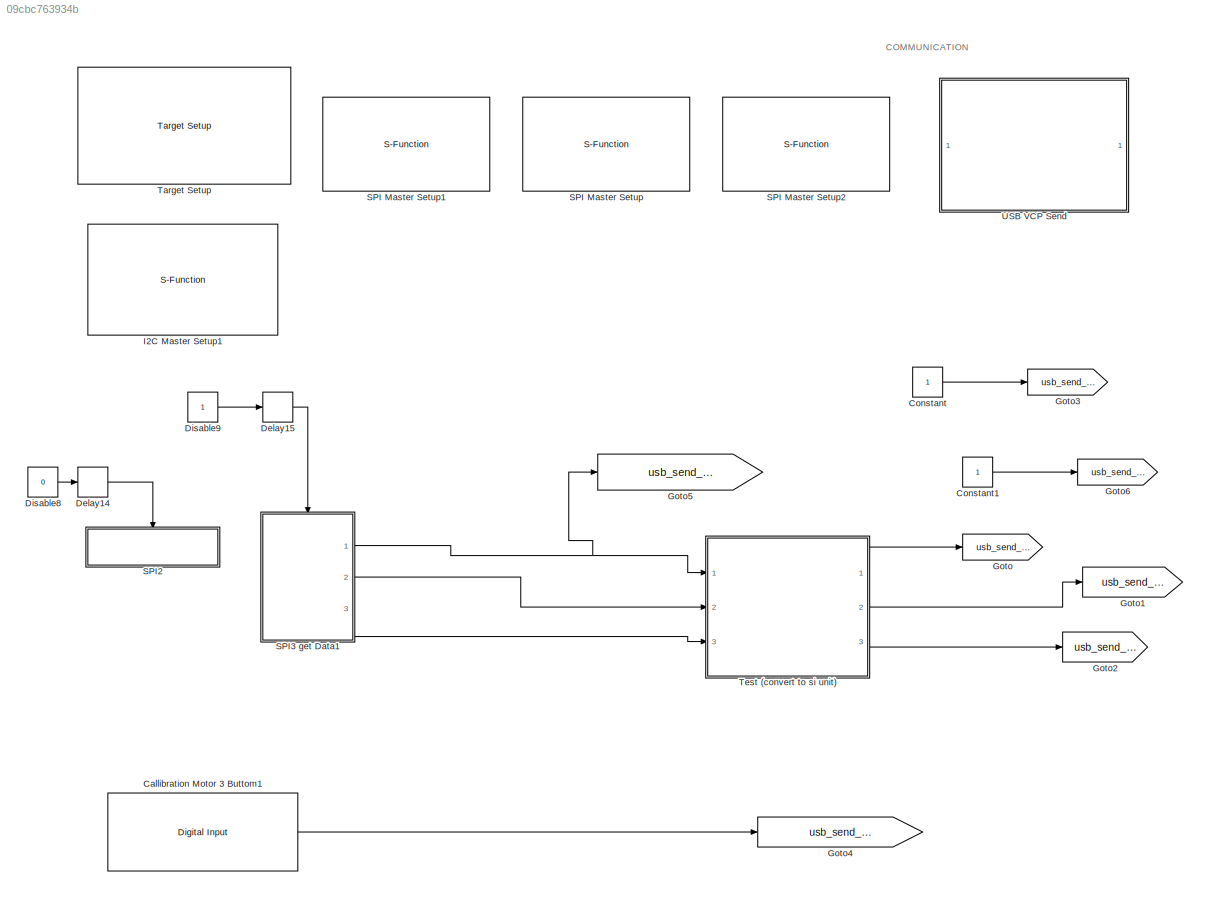
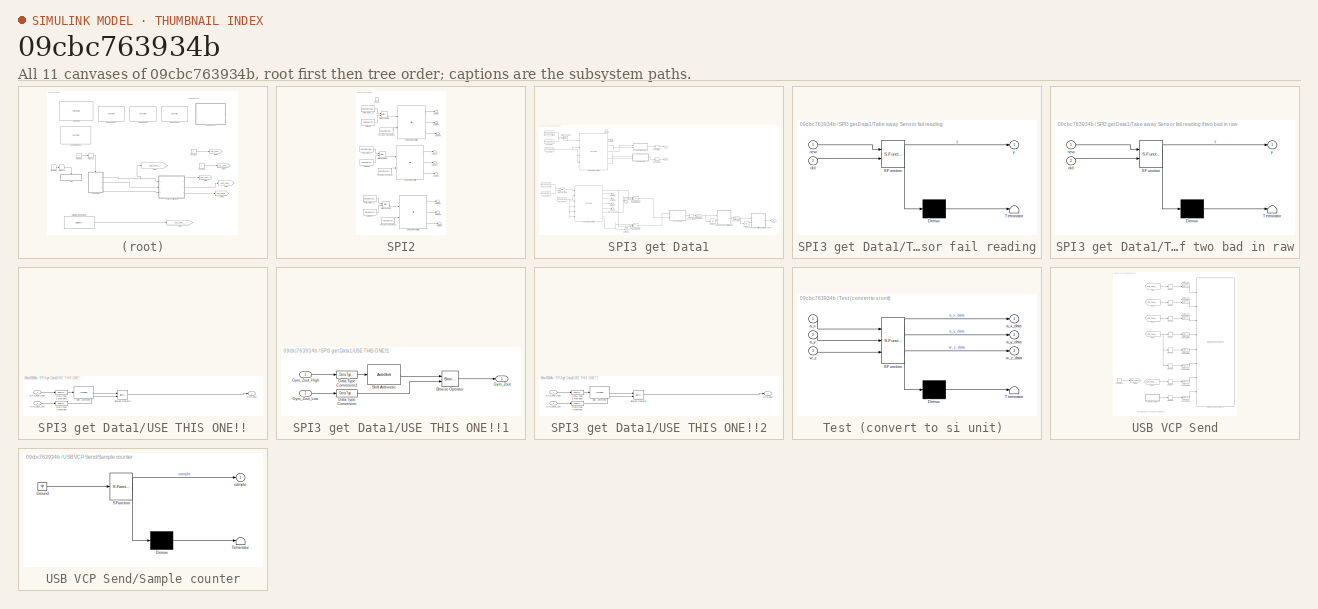
[diagram: thumbnail index - all 11 canvases of the model, root first then tree order]
MODEL slx_09cbc763934b
KIND model
CONFIG AbsTol = auto
CONFIG EnableMultiTasking = off
CONFIG FixedStep = auto
CONFIG MaxStep = auto
CONFIG MinStep = auto
CONFIG PreLoadFcn = waijung.modelPreload; % Required for working with Waijung Blockset. Do not remove.
CONFIG RelTol = 1e-3
CONFIG SampleTimeConstraint = Unconstrained
CONFIG Solver = FixedStepAuto
CONFIG SolverName = FixedStepAuto
CONFIG StartTime = 0.0
CONFIG StopTime = 10.0
BLOCK [Reference] Callibration Motor 3 Buttom1  REF=stm32f4_io_lib/Digital Input
  Ports = [0, 1]
  SourceBlock = stm32f4_io_lib/Digital Input
  SourceType = stm32f4_digital_input
BLOCK [Constant] Constant
BLOCK [Constant] Constant1
BLOCK [Delay] Delay14
  DelayLength = 1
  InitialCondition = 1
  InputPortMap = u0
  Ports = [1, 1]
BLOCK [Delay] Delay15
  DelayLength = 1
  InitialCondition = 0
  InputPortMap = u0
  Ports = [1, 1]
BLOCK [Constant] Disable8
  Value = 0
BLOCK [Constant] Disable9
BLOCK [Goto] Goto
  GotoTag = usb_send_a_x
  TagVisibility = global
BLOCK [Goto] Goto1
  GotoTag = usb_send_a_y
  TagVisibility = global
BLOCK [Goto] Goto2
  GotoTag = usb_send_w_z
  TagVisibility = global
BLOCK [Goto] Goto3
  GotoTag = usb_send_test1
  TagVisibility = global
BLOCK [Goto] Goto4
  GotoTag = usb_send_calibration_button
  TagVisibility = global
BLOCK [Goto] Goto5
  GotoTag = usb_send_a_x_raw
  TagVisibility = global
BLOCK [Goto] Goto6
  GotoTag = usb_send_test2
  TagVisibility = global
BLOCK [S-Function] I2C Master Setup1
  EnableBusSupport = off
  FunctionName = stm32f4_i2c
  Parameters = configuration,module,transfer,clkspeed,timeout,sdapin,sclpin,writecount,readcount,inputtypearray,outputtypearray,confstr,sampletime,sampletimestr,blockid
  Ports = []
  SFcnIsStateOwnerBlock = off
  SFunctionDeploymentMode = off
BLOCK [S-Function] SPI Master Setup
  EnableBusSupport = off
  FunctionName = stm32f4_spimaster
  Parameters = mode,configuration,module,datacount,inputtypearray,outputtypearray,confstr,sampletime,sampletimestr,blockid
  Ports = []
  SFcnIsStateOwnerBlock = off
  SFunctionDeploymentMode = off
BLOCK [S-Function] SPI Master Setup1
  EnableBusSupport = off
  FunctionName = stm32f4_spimaster
  Parameters = mode,configuration,module,datacount,inputtypearray,outputtypearray,confstr,sampletime,sampletimestr,blockid
  Ports = []
  SFcnIsStateOwnerBlock = off
  SFunctionDeploymentMode = off
BLOCK [S-Function] SPI Master Setup2
  EnableBusSupport = off
  FunctionName = stm32f4_spimaster
  Parameters = mode,configuration,module,datacount,inputtypearray,outputtypearray,confstr,sampletime,sampletimestr,blockid
  Ports = []
  SFcnIsStateOwnerBlock = off
  SFunctionDeploymentMode = off
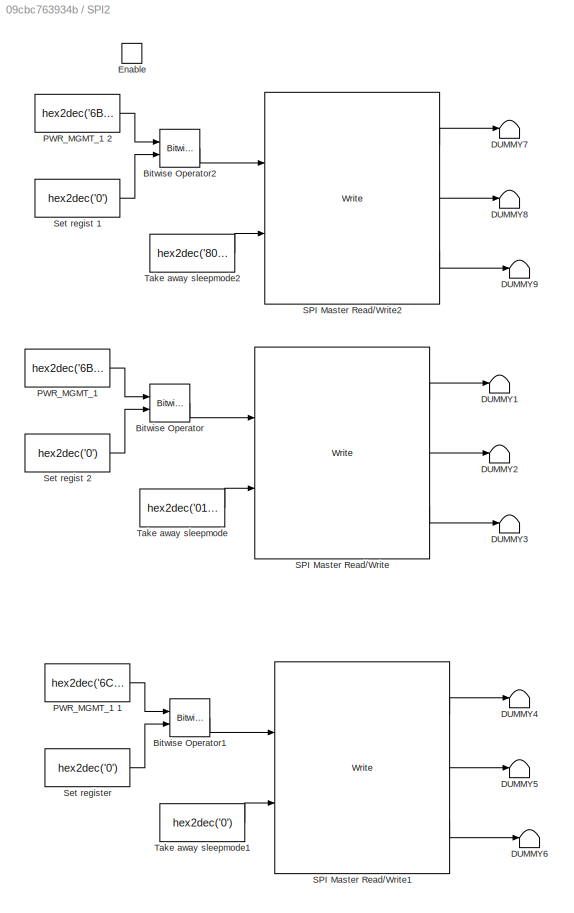
BLOCK [SubSystem] SPI2
  Ports = [0, 0, 1]
  Priority = 0
  RequestExecContextInheritance = off
  TreatAsAtomicUnit = on
  Variant = off
BLOCK [Reference] SPI2/Bitwise Operator  REF=simulink/Logic and Bit
Operations/Bitwise
Operator
  Ports = [2, 1]
  SourceBlock = simulink/Logic and Bit\nOperations/Bitwise\nOperator
  SourceType = Bitwise Operator
BLOCK [Reference] SPI2/Bitwise Operator1  REF=simulink/Logic and Bit
Operations/Bitwise
Operator
  Ports = [2, 1]
  SourceBlock = simulink/Logic and Bit\nOperations/Bitwise\nOperator
  SourceType = Bitwise Operator
BLOCK [Reference] SPI2/Bitwise Operator2  REF=simulink/Logic and Bit
Operations/Bitwise
Operator
  Ports = [2, 1]
  SourceBlock = simulink/Logic and Bit\nOperations/Bitwise\nOperator
  SourceType = Bitwise Operator
BLOCK [Terminator] SPI2/DUMMY1
BLOCK [Terminator] SPI2/DUMMY2
BLOCK [Terminator] SPI2/DUMMY3
BLOCK [Terminator] SPI2/DUMMY4
BLOCK [Terminator] SPI2/DUMMY5
BLOCK [Terminator] SPI2/DUMMY6
BLOCK [Terminator] SPI2/DUMMY7
BLOCK [Terminator] SPI2/DUMMY8
BLOCK [Terminator] SPI2/DUMMY9
BLOCK [EnablePort] SPI2/Enable
  Ports = []
BLOCK [Constant] SPI2/PWR_MGMT_1 
  OutDataTypeStr = uint8
  Value = hex2dec('6B')
BLOCK [Constant] SPI2/PWR_MGMT_1 1
  OutDataTypeStr = uint8
  Value = hex2dec('6C')
BLOCK [Constant] SPI2/PWR_MGMT_1 2
  OutDataTypeStr = uint8
  Value = hex2dec('6B')
BLOCK [Reference] SPI2/SPI Master Read//Write  REF=stm32f4_spi_lib/SPI Master Read//Write
  Ports = [2, 3]
  SourceBlock = stm32f4_spi_lib/SPI Master Read//Write
  SourceType = stm32f4_spimaster
BLOCK [Reference] SPI2/SPI Master Read//Write1  REF=stm32f4_spi_lib/SPI Master Read//Write
  Ports = [2, 3]
  SourceBlock = stm32f4_spi_lib/SPI Master Read//Write
  SourceType = stm32f4_spimaster
BLOCK [Reference] SPI2/SPI Master Read//Write2  REF=stm32f4_spi_lib/SPI Master Read//Write
  Ports = [2, 3]
  SourceBlock = stm32f4_spi_lib/SPI Master Read//Write
  SourceType = stm32f4_spimaster
BLOCK [Constant] SPI2/Set regist 1
  OutDataTypeStr = uint8
  Value = hex2dec('0')
BLOCK [Constant] SPI2/Set regist 2
  OutDataTypeStr = uint8
  Value = hex2dec('0')
BLOCK [Constant] SPI2/Set register
  OutDataTypeStr = uint8
  Value = hex2dec('0')
BLOCK [Constant] SPI2/Take away sleepmode
  OutDataTypeStr = uint8
  Value = hex2dec('01')
BLOCK [Constant] SPI2/Take away sleepmode1
  OutDataTypeStr = uint8
  Value = hex2dec('0')
BLOCK [Constant] SPI2/Take away sleepmode2
  OutDataTypeStr = uint8
  Value = hex2dec('80')
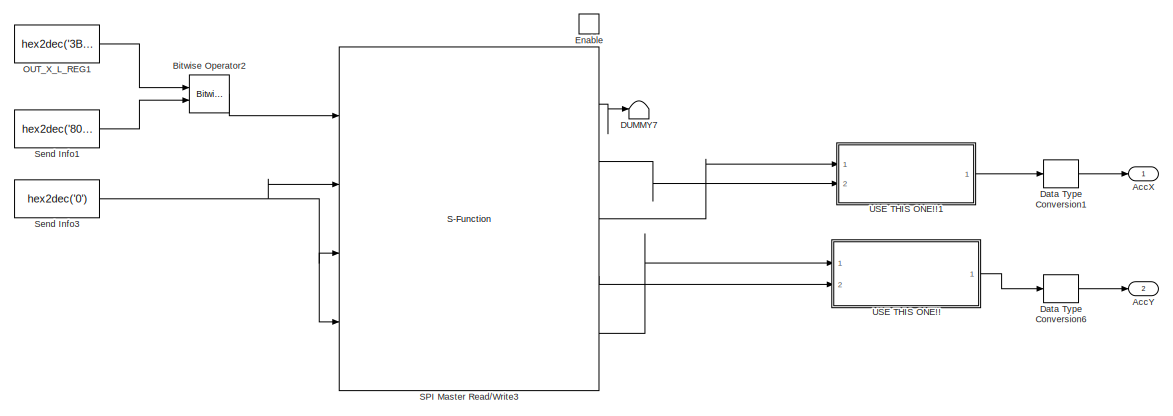
[diagram: SPI3 get Data1 - part 1/3, top left region]
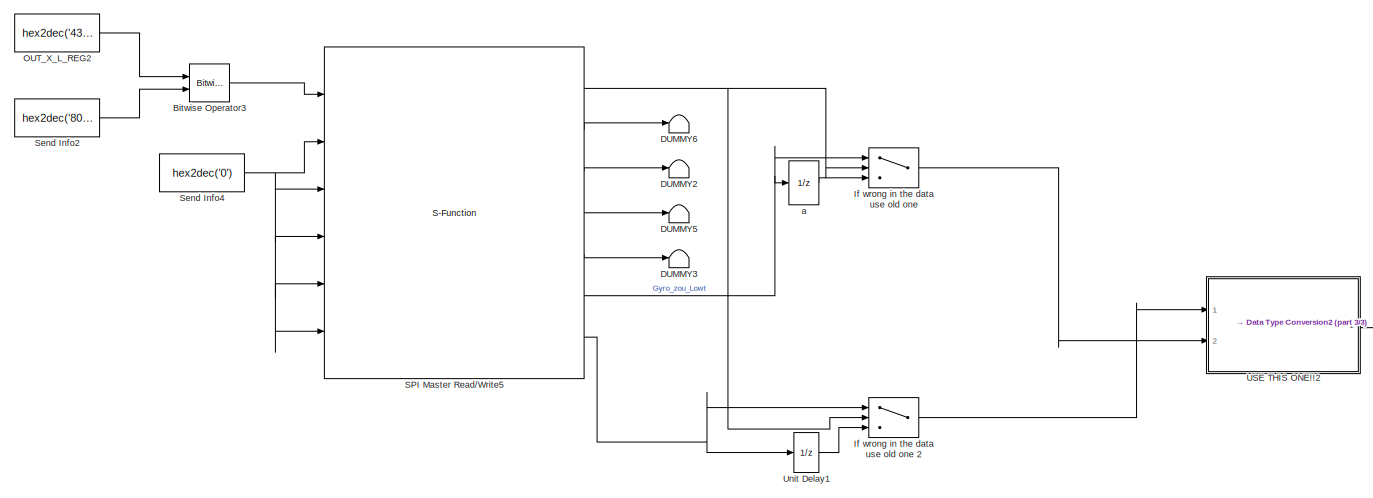
[diagram: SPI3 get Data1 - part 2/3, bottom left region]
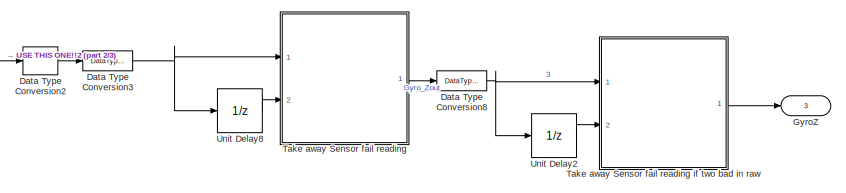
[diagram: SPI3 get Data1 - part 3/3, bottom right region]
BLOCK [SubSystem] SPI3 get Data1
  Ports = [0, 3, 1]
  RequestExecContextInheritance = off
  Variant = off
BLOCK [UnitDelay] SPI3 get Data1/ a
  InputProcessing = Elements as channels (sample based)
  SampleTime = -1
BLOCK [Outport] SPI3 get Data1/AccX
  IconDisplay = Port number
BLOCK [Outport] SPI3 get Data1/AccY 
  IconDisplay = Port number
  Port = 2
BLOCK [Reference] SPI3 get Data1/Bitwise Operator2  REF=simulink/Logic and Bit
Operations/Bitwise
Operator
  Ports = [2, 1]
  SourceBlock = simulink/Logic and Bit\nOperations/Bitwise\nOperator
  SourceType = Bitwise Operator
BLOCK [Reference] SPI3 get Data1/Bitwise Operator3  REF=simulink/Logic and Bit
Operations/Bitwise
Operator
  Ports = [2, 1]
  SourceBlock = simulink/Logic and Bit\nOperations/Bitwise\nOperator
  SourceType = Bitwise Operator
BLOCK [Terminator] SPI3 get Data1/DUMMY2
BLOCK [Terminator] SPI3 get Data1/DUMMY3
BLOCK [Terminator] SPI3 get Data1/DUMMY5
BLOCK [Terminator] SPI3 get Data1/DUMMY6
BLOCK [Terminator] SPI3 get Data1/DUMMY7
BLOCK [DataTypeConversion] SPI3 get Data1/Data Type Conversion1
  OutDataTypeStr = int16
  RndMeth = Floor
  SaturateOnIntegerOverflow = off
BLOCK [DataTypeConversion] SPI3 get Data1/Data Type Conversion2
  OutDataTypeStr = int16
  RndMeth = Floor
  SaturateOnIntegerOverflow = off
BLOCK [DataTypeConversion] SPI3 get Data1/Data Type Conversion3
  RndMeth = Floor
  SaturateOnIntegerOverflow = off
BLOCK [DataTypeConversion] SPI3 get Data1/Data Type Conversion6
  OutDataTypeStr = int16
  RndMeth = Floor
  SaturateOnIntegerOverflow = off
BLOCK [DataTypeConversion] SPI3 get Data1/Data Type Conversion8
  RndMeth = Floor
  SaturateOnIntegerOverflow = off
BLOCK [EnablePort] SPI3 get Data1/Enable
  Ports = []
BLOCK [Outport] SPI3 get Data1/GyroZ
  IconDisplay = Port number
  Port = 3
BLOCK [Switch] SPI3 get Data1/If wrong in the data use old one
  Criteria = u2 ~= 0
  InputSameDT = off
  SaturateOnIntegerOverflow = off
BLOCK [Switch] SPI3 get Data1/If wrong in the data use old one 2
  Criteria = u2 ~= 0
  InputSameDT = off
  SaturateOnIntegerOverflow = off
BLOCK [Constant] SPI3 get Data1/OUT_X_L_REG1
  OutDataTypeStr = uint8
  Value = hex2dec('3B')
BLOCK [Constant] SPI3 get Data1/OUT_X_L_REG2
  OutDataTypeStr = uint8
  Value = hex2dec('43')
BLOCK [S-Function] SPI3 get Data1/SPI Master Read//Write3
  EnableBusSupport = off
  FunctionName = stm32f4_spimaster
  Parameters = mode,configuration,module,datacount,inputtypearray,outputtypearray,confstr,sampletime,sampletimestr,blockid
  Ports = [4, 5]
  SFcnIsStateOwnerBlock = off
  SFunctionDeploymentMode = off
BLOCK [S-Function] SPI3 get Data1/SPI Master Read//Write5
  EnableBusSupport = off
  FunctionName = stm32f4_spimaster
  Parameters = mode,configuration,module,datacount,inputtypearray,outputtypearray,confstr,sampletime,sampletimestr,blockid
  Ports = [6, 7]
  SFcnIsStateOwnerBlock = off
  SFunctionDeploymentMode = off
BLOCK [Constant] SPI3 get Data1/Send Info1
  OutDataTypeStr = uint8
  Value = hex2dec('80')
BLOCK [Constant] SPI3 get Data1/Send Info2
  OutDataTypeStr = uint8
  Value = hex2dec('80')
BLOCK [Constant] SPI3 get Data1/Send Info3
  OutDataTypeStr = uint8
  Value = hex2dec('0')
BLOCK [Constant] SPI3 get Data1/Send Info4
  OutDataTypeStr = uint8
  Value = hex2dec('0')
BLOCK [SubSystem] SPI3 get Data1/Take away Sensor fail reading
  ErrorFcn = Stateflow.Translate.translate
  PermitHierarchicalResolution = ExplicitOnly
  Ports = [2, 1]
  RequestExecContextInheritance = off
  SFBlockType = MATLAB Function
  TreatAsAtomicUnit = on
  Variant = off
BLOCK [SubSystem] SPI3 get Data1/Take away Sensor fail reading if two bad in raw
  ErrorFcn = Stateflow.Translate.translate
  PermitHierarchicalResolution = ExplicitOnly
  Ports = [2, 1]
  RequestExecContextInheritance = off
  SFBlockType = MATLAB Function
  TreatAsAtomicUnit = on
  Variant = off
BLOCK [Demux] SPI3 get Data1/Take away Sensor fail reading if two bad in raw/ Demux 
  Outputs = 1
  Ports = [1, 1]
BLOCK [S-Function] SPI3 get Data1/Take away Sensor fail reading if two bad in raw/ SFunction 
  EnableBusSupport = on
  FunctionName = sf_sfun
  PortCounts = [2 2]
  Ports = [2, 2]
  SFcnIsStateOwnerBlock = off
  SFunctionDeploymentMode = off
  Tag = Stateflow S-Function cube_angel_magdwick_filter 21
BLOCK [Terminator] SPI3 get Data1/Take away Sensor fail reading if two bad in raw/ Terminator 
BLOCK [Inport] SPI3 get Data1/Take away Sensor fail reading if two bad in raw/new
  IconDisplay = Port number
BLOCK [Inport] SPI3 get Data1/Take away Sensor fail reading if two bad in raw/old
  IconDisplay = Port number
  Port = 2
BLOCK [Outport] SPI3 get Data1/Take away Sensor fail reading if two bad in raw/y
  IconDisplay = Port number
BLOCK [Demux] SPI3 get Data1/Take away Sensor fail reading/ Demux 
  Outputs = 1
  Ports = [1, 1]
BLOCK [S-Function] SPI3 get Data1/Take away Sensor fail reading/ SFunction 
  EnableBusSupport = on
  FunctionName = sf_sfun
  PortCounts = [2 2]
  Ports = [2, 2]
  SFcnIsStateOwnerBlock = off
  SFunctionDeploymentMode = off
  Tag = Stateflow S-Function cube_angel_magdwick_filter 20
BLOCK [Terminator] SPI3 get Data1/Take away Sensor fail reading/ Terminator 
BLOCK [Inport] SPI3 get Data1/Take away Sensor fail reading/new
  IconDisplay = Port number
BLOCK [Inport] SPI3 get Data1/Take away Sensor fail reading/old
  IconDisplay = Port number
  Port = 2
BLOCK [Outport] SPI3 get Data1/Take away Sensor fail reading/y
  IconDisplay = Port number
BLOCK [SubSystem] SPI3 get Data1/USE THIS ONE!!
  Ports = [2, 1]
  RequestExecContextInheritance = off
  Variant = off
BLOCK [Reference] SPI3 get Data1/USE THIS ONE!!/Bitwise Operator  REF=simulink/Logic and Bit
Operations/Bitwise
Operator
  Ports = [2, 1]
  SourceBlock = simulink/Logic and Bit\nOperations/Bitwise\nOperator
  SourceType = Bitwise Operator
BLOCK [DataTypeConversion] SPI3 get Data1/USE THIS ONE!!/Data Type Conversion
  OutDataTypeStr = uint16
  RndMeth = Floor
  SaturateOnIntegerOverflow = off
BLOCK [DataTypeConversion] SPI3 get Data1/USE THIS ONE!!/Data Type Conversion1
  OutDataTypeStr = uint16
  RndMeth = Floor
  SaturateOnIntegerOverflow = off
BLOCK [Outport] SPI3 get Data1/USE THIS ONE!!/Gyro_Zout
  IconDisplay = Port number
BLOCK [Inport] SPI3 get Data1/USE THIS ONE!!/Gyro_Zout_High 
  IconDisplay = Port number
BLOCK [Inport] SPI3 get Data1/USE THIS ONE!!/Gyro_Zout_Low
  IconDisplay = Port number
  Port = 2
BLOCK [ArithShift] SPI3 get Data1/USE THIS ONE!!/Shift Arithmetic
  BitShiftNumber = -8
  InputPortMap = u0
  Ports = [1, 1]
BLOCK [SubSystem] SPI3 get Data1/USE THIS ONE!!1
  Ports = [2, 1]
  RequestExecContextInheritance = off
  Variant = off
BLOCK [Reference] SPI3 get Data1/USE THIS ONE!!1/Bitwise Operator  REF=simulink/Logic and Bit
Operations/Bitwise
Operator
  Ports = [2, 1]
  SourceBlock = simulink/Logic and Bit\nOperations/Bitwise\nOperator
  SourceType = Bitwise Operator
BLOCK [DataTypeConversion] SPI3 get Data1/USE THIS ONE!!1/Data Type Conversion
  OutDataTypeStr = uint16
  RndMeth = Floor
  SaturateOnIntegerOverflow = off
BLOCK [DataTypeConversion] SPI3 get Data1/USE THIS ONE!!1/Data Type Conversion1
  OutDataTypeStr = uint16
  RndMeth = Floor
  SaturateOnIntegerOverflow = off
BLOCK [Outport] SPI3 get Data1/USE THIS ONE!!1/Gyro_Zout
  IconDisplay = Port number
BLOCK [Inport] SPI3 get Data1/USE THIS ONE!!1/Gyro_Zout_High 
  IconDisplay = Port number
BLOCK [Inport] SPI3 get Data1/USE THIS ONE!!1/Gyro_Zout_Low
  IconDisplay = Port number
  Port = 2
BLOCK [ArithShift] SPI3 get Data1/USE THIS ONE!!1/Shift Arithmetic
  BitShiftNumber = -8
  InputPortMap = u0
  Ports = [1, 1]
BLOCK [SubSystem] SPI3 get Data1/USE THIS ONE!!2
  Ports = [2, 1]
  RequestExecContextInheritance = off
  Variant = off
BLOCK [Reference] SPI3 get Data1/USE THIS ONE!!2/Bitwise Operator  REF=simulink/Logic and Bit
Operations/Bitwise
Operator
  Ports = [2, 1]
  SourceBlock = simulink/Logic and Bit\nOperations/Bitwise\nOperator
  SourceType = Bitwise Operator
BLOCK [DataTypeConversion] SPI3 get Data1/USE THIS ONE!!2/Data Type Conversion
  OutDataTypeStr = uint16
  RndMeth = Floor
  SaturateOnIntegerOverflow = off
BLOCK [DataTypeConversion] SPI3 get Data1/USE THIS ONE!!2/Data Type Conversion1
  OutDataTypeStr = uint16
  RndMeth = Floor
  SaturateOnIntegerOverflow = off
BLOCK [Outport] SPI3 get Data1/USE THIS ONE!!2/Gyro_Zout
  IconDisplay = Port number
BLOCK [Inport] SPI3 get Data1/USE THIS ONE!!2/Gyro_Zout_High 
  IconDisplay = Port number
BLOCK [Inport] SPI3 get Data1/USE THIS ONE!!2/Gyro_Zout_Low
  IconDisplay = Port number
  Port = 2
BLOCK [ArithShift] SPI3 get Data1/USE THIS ONE!!2/Shift Arithmetic
  BitShiftNumber = -8
  InputPortMap = u0
  Ports = [1, 1]
BLOCK [UnitDelay] SPI3 get Data1/Unit Delay1
  InputProcessing = Elements as channels (sample based)
  SampleTime = -1
BLOCK [UnitDelay] SPI3 get Data1/Unit Delay2
  InitialCondition = -40.45
  InputProcessing = Elements as channels (sample based)
  SampleTime = -1
BLOCK [UnitDelay] SPI3 get Data1/Unit Delay8
  InitialCondition = -40.45
  InputProcessing = Elements as channels (sample based)
  SampleTime = -1
BLOCK [Reference] Target Setup  REF=stm32f4_device_config_lib/Target Setup
  Ports = []
  Priority = 100
  SourceBlock = stm32f4_device_config_lib/Target Setup
  SourceType = stm32f4_target_setup
BLOCK [SubSystem] Test (convert to si unit) 
  ErrorFcn = Stateflow.Translate.translate
  PermitHierarchicalResolution = ExplicitOnly
  Ports = [3, 3]
  RequestExecContextInheritance = off
  SFBlockType = MATLAB Function
  TreatAsAtomicUnit = on
  Variant = off
BLOCK [Demux] Test (convert to si unit) / Demux 
  Outputs = 1
  Ports = [1, 1]
BLOCK [S-Function] Test (convert to si unit) / SFunction 
  EnableBusSupport = on
  FunctionName = sf_sfun
  Parameters = deg_
  PortCounts = [3 4]
  Ports = [3, 4]
  SFcnIsStateOwnerBlock = off
  SFunctionDeploymentMode = off
  Tag = Stateflow S-Function cube_angel_magdwick_filter 2
BLOCK [Terminator] Test (convert to si unit) / Terminator 
BLOCK [Inport] Test (convert to si unit) /a_x
  IconDisplay = Port number
BLOCK [Outport] Test (convert to si unit) /a_x_data
  IconDisplay = Port number
BLOCK [Inport] Test (convert to si unit) /a_y
  IconDisplay = Port number
  Port = 2
BLOCK [Outport] Test (convert to si unit) /a_y_data
  IconDisplay = Port number
  Port = 2
BLOCK [Inport] Test (convert to si unit) /w_z
  IconDisplay = Port number
  Port = 3
BLOCK [Outport] Test (convert to si unit) /w_z_data
  IconDisplay = Port number
  Port = 3
BLOCK [SubSystem] USB VCP Send
  Ports = []
  RequestExecContextInheritance = off
  Variant = off
BLOCK [Constant] USB VCP Send/Constant1
  Value = 0
BLOCK [DataTypeConversion] USB VCP Send/Data Type Conversion1
  RndMeth = Floor
  SaturateOnIntegerOverflow = off
BLOCK [DataTypeConversion] USB VCP Send/Data Type Conversion2
  RndMeth = Floor
  SaturateOnIntegerOverflow = off
BLOCK [DataTypeConversion] USB VCP Send/Data Type Conversion3
  RndMeth = Floor
  SaturateOnIntegerOverflow = off
BLOCK [DataTypeConversion] USB VCP Send/Data Type Conversion4
  RndMeth = Floor
  SaturateOnIntegerOverflow = off
BLOCK [DataTypeConversion] USB VCP Send/Data Type Conversion5
  RndMeth = Floor
  SaturateOnIntegerOverflow = off
BLOCK [DataTypeConversion] USB VCP Send/Data Type Conversion6
  RndMeth = Floor
  SaturateOnIntegerOverflow = off
BLOCK [DataTypeConversion] USB VCP Send/Data Type Conversion8
  RndMeth = Floor
  SaturateOnIntegerOverflow = off
BLOCK [DataTypeConversion] USB VCP Send/Data Type Conversion9
  RndMeth = Floor
  SaturateOnIntegerOverflow = off
BLOCK [From] USB VCP Send/From
  GotoTag = usb_send_a_x
  TagVisibility = global
BLOCK [From] USB VCP Send/From1
  GotoTag = usb_send_a_y
  TagVisibility = global
BLOCK [From] USB VCP Send/From2
  GotoTag = usb_send_w_z
  TagVisibility = global
BLOCK [From] USB VCP Send/From3
  GotoTag = usb_send_a_x_raw
  TagVisibility = global
BLOCK [From] USB VCP Send/From6
  GotoTag = usb_send_calibration_button
  TagVisibility = global
BLOCK [Goto] USB VCP Send/Goto5
  GotoTag = usb_send_7
  TagVisibility = global
BLOCK [Memory] USB VCP Send/Memory1
  InheritSampleTime = on
BLOCK [Memory] USB VCP Send/Memory2
  InheritSampleTime = on
BLOCK [Memory] USB VCP Send/Memory3
  InheritSampleTime = on
BLOCK [Memory] USB VCP Send/Memory4
  InheritSampleTime = on
BLOCK [Memory] USB VCP Send/Memory5
  InheritSampleTime = on
BLOCK [Memory] USB VCP Send/Memory6
  InheritSampleTime = on
BLOCK [Memory] USB VCP Send/Memory7
  InheritSampleTime = on
BLOCK [Memory] USB VCP Send/Memory9
  InheritSampleTime = on
BLOCK [SubSystem] USB VCP Send/Sample counter
  ErrorFcn = Stateflow.Translate.translate
  PermitHierarchicalResolution = ExplicitOnly
  Ports = [0, 1]
  RequestExecContextInheritance = off
  SFBlockType = MATLAB Function
  TreatAsAtomicUnit = on
  Variant = off
BLOCK [Demux] USB VCP Send/Sample counter/ Demux 
  Outputs = 1
  Ports = [1, 1]
BLOCK [Ground] USB VCP Send/Sample counter/ Ground 
BLOCK [S-Function] USB VCP Send/Sample counter/ SFunction 
  EnableBusSupport = on
  FunctionName = sf_sfun
  PortCounts = [1 2]
  Ports = [1, 2]
  SFcnIsStateOwnerBlock = off
  SFunctionDeploymentMode = off
  Tag = Stateflow S-Function cube_angel_magdwick_filter 1
BLOCK [Terminator] USB VCP Send/Sample counter/ Terminator 
BLOCK [Outport] USB VCP Send/Sample counter/sample
  IconDisplay = Port number
BLOCK [Reference] USB VCP Send/USB VCP Send STM32F1  REF=BC_USB/USB VCP Send STM32F4
  Ports = [8]
  SourceBlock = BC_USB/USB VCP Send STM32F4
  SourceType = USB_VCP_SEND_STM32F4 High Speed Large Data Packet Size
ANNOTATION (root): COMMUNICATION
ANNOTATION USB VCP Send: NOTE: All Goto blocks need to be set in global
LINE Callibration Motor 3 Buttom1:1 -> Goto4:1
LINE Constant1:1 -> Goto6:1
LINE Constant:1 -> Goto3:1
LINE Delay14:1 -> SPI2:enable
LINE Delay15:1 -> SPI3 get Data1:enable
LINE Disable8:1 -> Delay14:1
LINE Disable9:1 -> Delay15:1
LINE SPI2/Bitwise Operator1:1 -> SPI2/SPI Master Read//Write1:1
LINE SPI2/Bitwise Operator2:1 -> SPI2/SPI Master Read//Write2:1
LINE SPI2/Bitwise Operator:1 -> SPI2/SPI Master Read//Write:1
LINE SPI2/PWR_MGMT_1 1:1 -> SPI2/Bitwise Operator1:1
LINE SPI2/PWR_MGMT_1 2:1 -> SPI2/Bitwise Operator2:1
LINE SPI2/PWR_MGMT_1 :1 -> SPI2/Bitwise Operator:1
LINE SPI2/SPI Master Read//Write1:1 -> SPI2/DUMMY4:1
LINE SPI2/SPI Master Read//Write1:2 -> SPI2/DUMMY5:1
LINE SPI2/SPI Master Read//Write1:3 -> SPI2/DUMMY6:1
LINE SPI2/SPI Master Read//Write2:1 -> SPI2/DUMMY7:1
LINE SPI2/SPI Master Read//Write2:2 -> SPI2/DUMMY8:1
LINE SPI2/SPI Master Read//Write2:3 -> SPI2/DUMMY9:1
LINE SPI2/SPI Master Read//Write:1 -> SPI2/DUMMY1:1
LINE SPI2/SPI Master Read//Write:2 -> SPI2/DUMMY2:1
LINE SPI2/SPI Master Read//Write:3 -> SPI2/DUMMY3:1
LINE SPI2/Set regist 1:1 -> SPI2/Bitwise Operator2:2
LINE SPI2/Set regist 2:1 -> SPI2/Bitwise Operator:2
LINE SPI2/Set register:1 -> SPI2/Bitwise Operator1:2
LINE SPI2/Take away sleepmode1:1 -> SPI2/SPI Master Read//Write1:2
LINE SPI2/Take away sleepmode2:1 -> SPI2/SPI Master Read//Write2:2
LINE SPI2/Take away sleepmode:1 -> SPI2/SPI Master Read//Write:2
LINE SPI3 get Data1/ a:1 -> SPI3 get Data1/If wrong in the data use old one:3
LINE SPI3 get Data1/Bitwise Operator2:1 -> SPI3 get Data1/SPI Master Read//Write3:1
LINE SPI3 get Data1/Bitwise Operator3:1 -> SPI3 get Data1/SPI Master Read//Write5:1
LINE SPI3 get Data1/Data Type Conversion1:1 -> SPI3 get Data1/AccX:1
LINE SPI3 get Data1/Data Type Conversion2:1 -> SPI3 get Data1/Data Type Conversion3:1
NET SPI3 get Data1/Data Type Conversion3:1 -> SPI3 get Data1/Take away Sensor fail reading:1, SPI3 get Data1/Unit Delay8:1
LINE SPI3 get Data1/Data Type Conversion6:1 -> SPI3 get Data1/AccY :1
NET SPI3 get Data1/Data Type Conversion8:1 -> SPI3 get Data1/Take away Sensor fail reading if two bad in raw:1, SPI3 get Data1/Unit Delay2:1
LINE SPI3 get Data1/If wrong in the data use old one 2:1 -> SPI3 get Data1/USE THIS ONE!!2:1
LINE SPI3 get Data1/If wrong in the data use old one:1 -> SPI3 get Data1/USE THIS ONE!!2:2
LINE SPI3 get Data1/OUT_X_L_REG1:1 -> SPI3 get Data1/Bitwise Operator2:1
LINE SPI3 get Data1/OUT_X_L_REG2:1 -> SPI3 get Data1/Bitwise Operator3:1
LINE SPI3 get Data1/SPI Master Read//Write3:1 -> SPI3 get Data1/DUMMY7:1
LINE SPI3 get Data1/SPI Master Read//Write3:2 -> SPI3 get Data1/USE THIS ONE!!1:2
LINE SPI3 get Data1/SPI Master Read//Write3:3 -> SPI3 get Data1/USE THIS ONE!!1:1
LINE SPI3 get Data1/SPI Master Read//Write3:4 -> SPI3 get Data1/USE THIS ONE!!:2
LINE SPI3 get Data1/SPI Master Read//Write3:5 -> SPI3 get Data1/USE THIS ONE!!:1
NET SPI3 get Data1/SPI Master Read//Write5:1 -> SPI3 get Data1/If wrong in the data use old one 2:2, SPI3 get Data1/If wrong in the data use old one:2
LINE SPI3 get Data1/SPI Master Read//Write5:2 -> SPI3 get Data1/DUMMY6:1
LINE SPI3 get Data1/SPI Master Read//Write5:3 -> SPI3 get Data1/DUMMY2:1
LINE SPI3 get Data1/SPI Master Read//Write5:4 -> SPI3 get Data1/DUMMY5:1
LINE SPI3 get Data1/SPI Master Read//Write5:5 -> SPI3 get Data1/DUMMY3:1
NET SPI3 get Data1/SPI Master Read//Write5:6 -> SPI3 get Data1/ a:1, SPI3 get Data1/If wrong in the data use old one:1
NET SPI3 get Data1/SPI Master Read//Write5:7 -> SPI3 get Data1/If wrong in the data use old one 2:1, SPI3 get Data1/Unit Delay1:1
LINE SPI3 get Data1/Send Info1:1 -> SPI3 get Data1/Bitwise Operator2:2
LINE SPI3 get Data1/Send Info2:1 -> SPI3 get Data1/Bitwise Operator3:2
NET SPI3 get Data1/Send Info3:1 -> SPI3 get Data1/SPI Master Read//Write3:2, SPI3 get Data1/SPI Master Read//Write3:3, SPI3 get Data1/SPI Master Read//Write3:4
NET SPI3 get Data1/Send Info4:1 -> SPI3 get Data1/SPI Master Read//Write5:2, SPI3 get Data1/SPI Master Read//Write5:3, SPI3 get Data1/SPI Master Read//Write5:4, SPI3 get Data1/SPI Master Read//Write5:5, SPI3 get Data1/SPI Master Read//Write5:6
LINE SPI3 get Data1/Take away Sensor fail reading if two bad in raw:1 -> SPI3 get Data1/GyroZ:1
LINE SPI3 get Data1/Take away Sensor fail reading:1 -> SPI3 get Data1/Data Type Conversion8:1
LINE SPI3 get Data1/USE THIS ONE!!/Bitwise Operator:1 -> SPI3 get Data1/USE THIS ONE!!/Gyro_Zout:1
LINE SPI3 get Data1/USE THIS ONE!!/Data Type Conversion1:1 -> SPI3 get Data1/USE THIS ONE!!/Shift Arithmetic:1
LINE SPI3 get Data1/USE THIS ONE!!/Data Type Conversion:1 -> SPI3 get Data1/USE THIS ONE!!/Bitwise Operator:2
LINE SPI3 get Data1/USE THIS ONE!!/Gyro_Zout_High :1 -> SPI3 get Data1/USE THIS ONE!!/Data Type Conversion1:1
LINE SPI3 get Data1/USE THIS ONE!!/Gyro_Zout_Low:1 -> SPI3 get Data1/USE THIS ONE!!/Data Type Conversion:1
LINE SPI3 get Data1/USE THIS ONE!!/Shift Arithmetic:1 -> SPI3 get Data1/USE THIS ONE!!/Bitwise Operator:1
LINE SPI3 get Data1/USE THIS ONE!!1/Bitwise Operator:1 -> SPI3 get Data1/USE THIS ONE!!1/Gyro_Zout:1
LINE SPI3 get Data1/USE THIS ONE!!1/Data Type Conversion1:1 -> SPI3 get Data1/USE THIS ONE!!1/Shift Arithmetic:1
LINE SPI3 get Data1/USE THIS ONE!!1/Data Type Conversion:1 -> SPI3 get Data1/USE THIS ONE!!1/Bitwise Operator:2
LINE SPI3 get Data1/USE THIS ONE!!1/Gyro_Zout_High :1 -> SPI3 get Data1/USE THIS ONE!!1/Data Type Conversion1:1
LINE SPI3 get Data1/USE THIS ONE!!1/Gyro_Zout_Low:1 -> SPI3 get Data1/USE THIS ONE!!1/Data Type Conversion:1
LINE SPI3 get Data1/USE THIS ONE!!1/Shift Arithmetic:1 -> SPI3 get Data1/USE THIS ONE!!1/Bitwise Operator:1
LINE SPI3 get Data1/USE THIS ONE!!1:1 -> SPI3 get Data1/Data Type Conversion1:1
LINE SPI3 get Data1/USE THIS ONE!!2/Bitwise Operator:1 -> SPI3 get Data1/USE THIS ONE!!2/Gyro_Zout:1
LINE SPI3 get Data1/USE THIS ONE!!2/Data Type Conversion1:1 -> SPI3 get Data1/USE THIS ONE!!2/Shift Arithmetic:1
LINE SPI3 get Data1/USE THIS ONE!!2/Data Type Conversion:1 -> SPI3 get Data1/USE THIS ONE!!2/Bitwise Operator:2
LINE SPI3 get Data1/USE THIS ONE!!2/Gyro_Zout_High :1 -> SPI3 get Data1/USE THIS ONE!!2/Data Type Conversion1:1
LINE SPI3 get Data1/USE THIS ONE!!2/Gyro_Zout_Low:1 -> SPI3 get Data1/USE THIS ONE!!2/Data Type Conversion:1
LINE SPI3 get Data1/USE THIS ONE!!2/Shift Arithmetic:1 -> SPI3 get Data1/USE THIS ONE!!2/Bitwise Operator:1
LINE SPI3 get Data1/USE THIS ONE!!2:1 -> SPI3 get Data1/Data Type Conversion2:1
LINE SPI3 get Data1/USE THIS ONE!!:1 -> SPI3 get Data1/Data Type Conversion6:1
LINE SPI3 get Data1/Unit Delay1:1 -> SPI3 get Data1/If wrong in the data use old one 2:3
LINE SPI3 get Data1/Unit Delay2:1 -> SPI3 get Data1/Take away Sensor fail reading if two bad in raw:2
LINE SPI3 get Data1/Unit Delay8:1 -> SPI3 get Data1/Take away Sensor fail reading:2
NET SPI3 get Data1:1 -> Goto5:1, Test (convert to si unit) :1
LINE SPI3 get Data1:2 -> Test (convert to si unit) :2
LINE SPI3 get Data1:3 -> Test (convert to si unit) :3
LINE Test (convert to si unit) :1 -> Goto:1
LINE Test (convert to si unit) :2 -> Goto1:1
LINE Test (convert to si unit) :3 -> Goto2:1
LINE USB VCP Send/Constant1:1 -> USB VCP Send/Goto5:1
LINE USB VCP Send/Data Type Conversion1:1 -> USB VCP Send/USB VCP Send STM32F1:1
LINE USB VCP Send/Data Type Conversion2:1 -> USB VCP Send/USB VCP Send STM32F1:2
LINE USB VCP Send/Data Type Conversion3:1 -> USB VCP Send/USB VCP Send STM32F1:3
LINE USB VCP Send/Data Type Conversion4:1 -> USB VCP Send/USB VCP Send STM32F1:4
LINE USB VCP Send/Data Type Conversion5:1 -> USB VCP Send/USB VCP Send STM32F1:5
LINE USB VCP Send/Data Type Conversion6:1 -> USB VCP Send/USB VCP Send STM32F1:6
LINE USB VCP Send/Data Type Conversion8:1 -> USB VCP Send/USB VCP Send STM32F1:7
LINE USB VCP Send/Data Type Conversion9:1 -> USB VCP Send/USB VCP Send STM32F1:8
LINE USB VCP Send/From1:1 -> USB VCP Send/Memory2:1
LINE USB VCP Send/From2:1 -> USB VCP Send/Memory3:1
NET USB VCP Send/From3:1 -> USB VCP Send/Memory4:1, USB VCP Send/Memory5:1, USB VCP Send/Memory6:1
LINE USB VCP Send/From6:1 -> USB VCP Send/Memory7:1
LINE USB VCP Send/From:1 -> USB VCP Send/Memory1:1
LINE USB VCP Send/Memory1:1 -> USB VCP Send/Data Type Conversion1:1
LINE USB VCP Send/Memory2:1 -> USB VCP Send/Data Type Conversion2:1
LINE USB VCP Send/Memory3:1 -> USB VCP Send/Data Type Conversion3:1
LINE USB VCP Send/Memory4:1 -> USB VCP Send/Data Type Conversion4:1
LINE USB VCP Send/Memory5:1 -> USB VCP Send/Data Type Conversion5:1
LINE USB VCP Send/Memory6:1 -> USB VCP Send/Data Type Conversion6:1
LINE USB VCP Send/Memory7:1 -> USB VCP Send/Data Type Conversion8:1
LINE USB VCP Send/Memory9:1 -> USB VCP Send/Data Type Conversion9:1
LINE USB VCP Send/Sample counter:1 -> USB VCP Send/Memory9:1
note: NET lines group one-source signal fan-out (src -> all destinations, sorted); 1:1 wires keep LINE
CHART USB VCP Send/Sample counter states=1 transitions=1
  STATE_LABEL 'eML_blk_kernel()'
  STATE_LABEL 'SCRIPT:\nfunction sample = SampleCounter\n%#codegen\n\npersistent sample_count;\n\nif isempty(sample_count)\n    sample_count = 0;\nend\n\nsample_count = sample_count + 1;\n\nsample = sample_count;'
CHART Test (convert to si unit)  states=1 transitions=1
  STATE_LABEL 'eML_blk_kernel()'
  STATE_LABEL 'SCRIPT:\nfunction [a_x_data,a_y_data,w_z_data] = ConvertImuData(a_x,a_y,w_z, deg_)\n%#codegen\n\n%g_ = 9.81*m_/s_^2;\ng_ = 9.81;\na_scale_factor = 16384; % AFS_SEL = 0, se datablad MPU9250\nw_scale_factor = 131;   % FS_SEL = 0, se datablad MPU9250\na_x_data = double(a_x)/a_scale_factor*g_;\na_y_data = double(a_y)/a_scale_factor*g_;\nw_z_data = double(w_z)/w_scale_factor*deg_;'
CHART SPI3 get Data1/Take away Sensor fail reading states=1 transitions=1
  STATE_LABEL 'eML_blk_kernel()'
  STATE_LABEL 'SCRIPT:\nfunction y = fcn(new, old)\n%#codegen\nif(new > -257 && new < -200)\n   y = old;\nelse\n    y = new;\nend'
CHART SPI3 get Data1/Take away Sensor fail reading if two bad in raw states=1 transitions=1
  STATE_LABEL 'eML_blk_kernel()'
  STATE_LABEL 'SCRIPT:\nfunction y = fcn(new, old)\n%#codegen\nif(new > -257 && new < -200)\n   y = old;\nelse\n    y = new;\nend'
